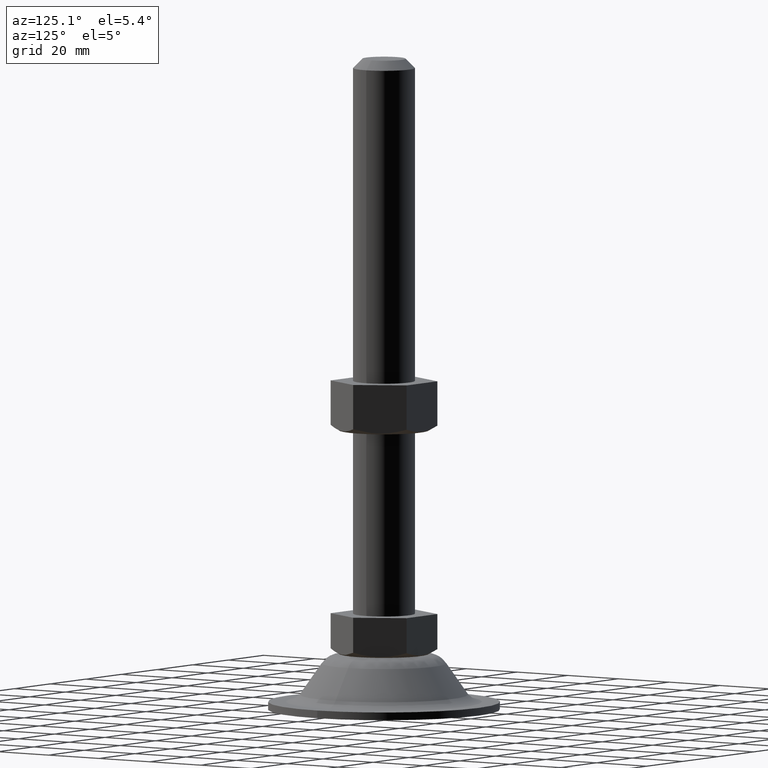
[diagram: clean part render]
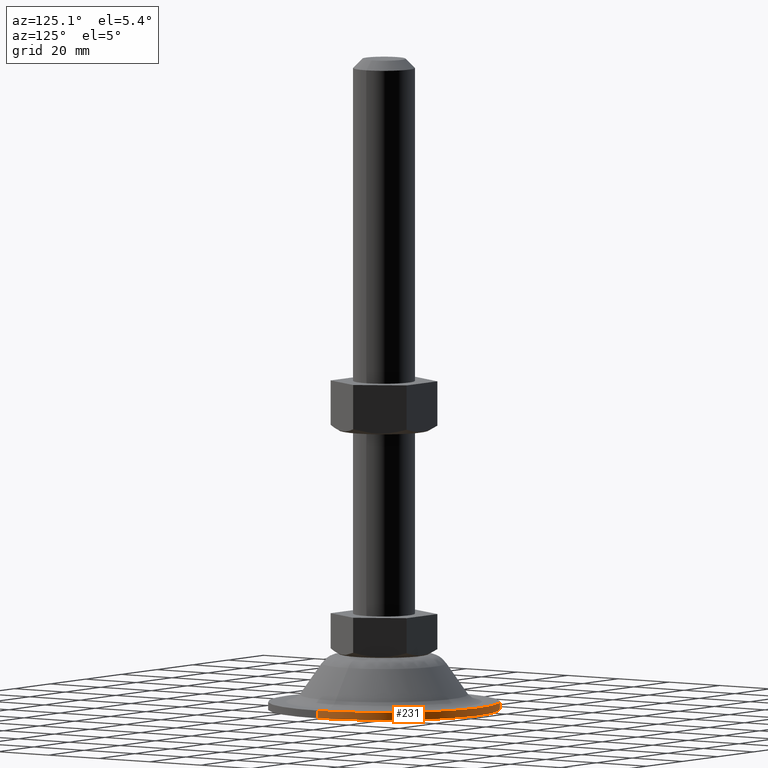
[diagram: same view with one face highlighted and labeled with its STEP entity id]
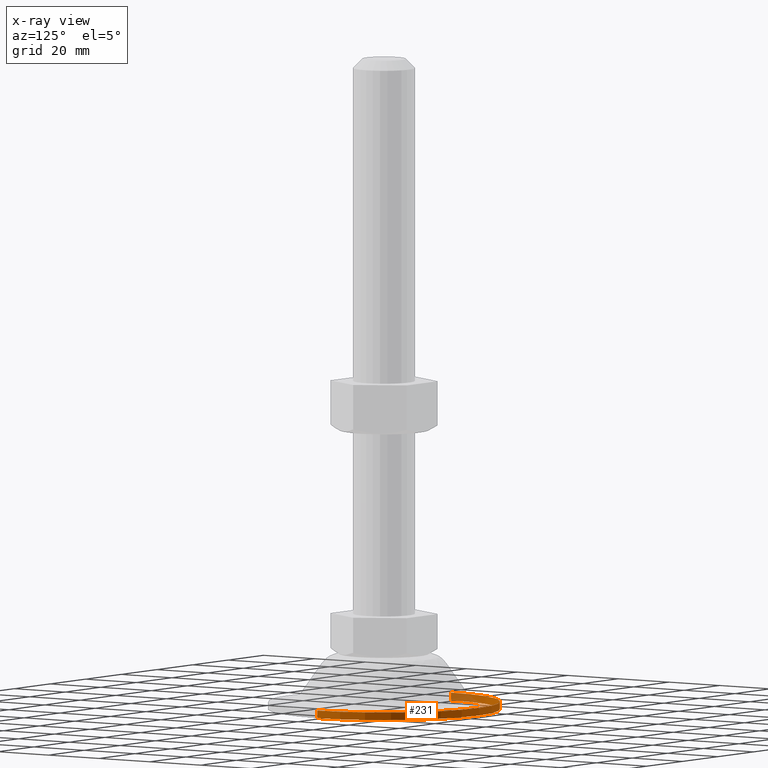
[diagram: x-ray of the same camera — body ghosted, the highlighted face saturated]
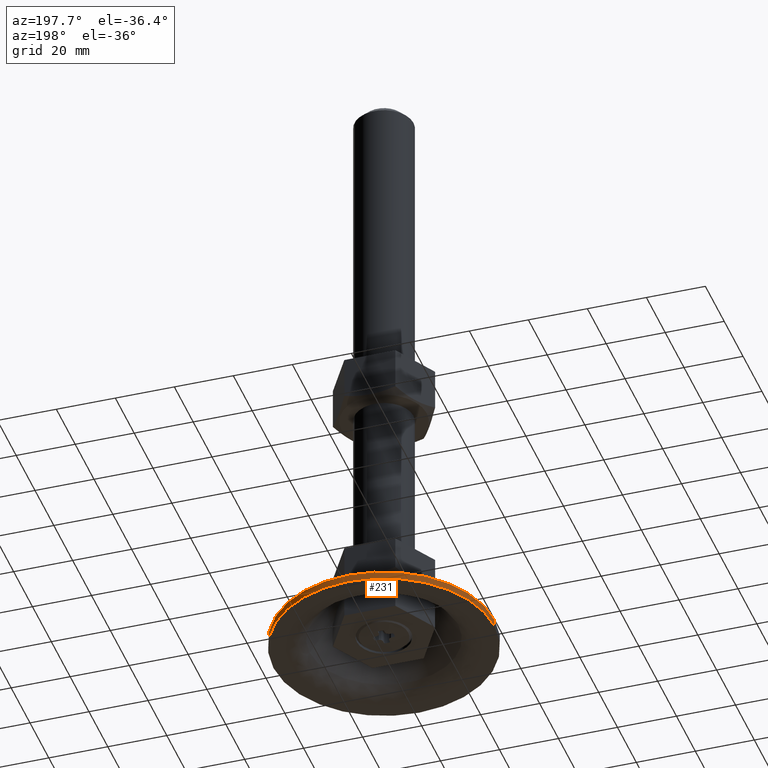
[diagram: same view with one face highlighted and labeled with its STEP entity id]
A machine part, auxiliary view. The second image highlights one B-rep face of the part: STEP entity #231.
The next image is the same camera in x-ray: the body ghosted, the highlighted face saturated — about 10% of this face is hidden behind the body in this view.
A second angle (auxiliary view) of the same face is appended — the face is thin or edge-on in the first view.
In plain terms, the highlighted cylindrical surface (partial cylindrical patch) has radius 37.5 mm, axis along (0, 0, 1).
Its self-contained STEP definition (entity closure, byte-faithful):
#231=ADVANCED_FACE('',(#1072),#1071,.T.);
#1071=CYLINDRICAL_SURFACE('',#1734,3.75000000000E+01);
#1072=FACE_OUTER_BOUND('',#1735,.T.);
#1731=CARTESIAN_POINT('',(-3.52144979843E-11,0.00000000000E+00,0.00000000000E+00));
#1732=DIRECTION('',(0.00000000000E+00,-0.00000000000E+00,1.00000000000E+00));
#1733=DIRECTION('',(1.00000000000E+00,-0.00000000000E+00,-0.00000000000E+00));
#1734=AXIS2_PLACEMENT_3D('',#1731,#1732,#1733);
#1735=EDGE_LOOP('',(#2211,#2212,#2213,#2214));
#2211=ORIENTED_EDGE('',*,*,#2420,.T.);
#2212=ORIENTED_EDGE('',*,*,#2439,.F.);
#2213=ORIENTED_EDGE('',*,*,#2415,.F.);
#2214=ORIENTED_EDGE('',*,*,#2440,.T.);
#2415=EDGE_CURVE('',#3595,#3596,#3597,.T.);
#2420=EDGE_CURVE('',#3624,#3623,#3631,.T.);
#2439=EDGE_CURVE('',#3596,#3623,#3755,.T.);
#2440=EDGE_CURVE('',#3595,#3624,#3761,.T.);
#3595=VERTEX_POINT('',#4653);
#3596=VERTEX_POINT('',#4654);
#3597=CIRCLE('',#4658,3.75000000000E+01);
#3623=VERTEX_POINT('',#4673);
#3624=VERTEX_POINT('',#4674);
#3631=CIRCLE('',#4682,3.75000000000E+01);
#3755=(BOUNDED_CURVE() B_SPLINE_CURVE(1,(#4753,#4754),.UNSPECIFIED.,.F.,.F.) B_SPLINE_CURVE_WITH_KNOTS((2,2),(8.33333233997E-02,9.16666663280E-01),.UNSPECIFIED.) CURVE() GEOMETRIC_REPRESENTATION_ITEM() RATIONAL_B_SPLINE_CURVE((1.00000000000E+00,1.00000000000E+00)) REPRESENTATION_ITEM('') );
#3761=(BOUNDED_CURVE() B_SPLINE_CURVE(1,(#4755,#4756),.UNSPECIFIED.,.F.,.F.) B_SPLINE_CURVE_WITH_KNOTS((2,2),(8.33333333333E-02,9.16666666667E-01),.UNSPECIFIED.) CURVE() GEOMETRIC_REPRESENTATION_ITEM() RATIONAL_B_SPLINE_CURVE((7.50000000000E-01,7.50000000000E-01)) REPRESENTATION_ITEM('') );
#4653=CARTESIAN_POINT('',(-3.75000000001E+01,0.00000000000E+00,-3.10417424306E+01));
#4654=CARTESIAN_POINT('',(3.75000000000E+01,2.36847578587E-15,-3.10417424306E+01));
#4655=CARTESIAN_POINT('',(-3.52144979843E-11,0.00000000000E+00,-3.10417424306E+01));
#4656=DIRECTION('',(-0.00000000000E+00,0.00000000000E+00,-1.00000000000E+00));
#4657=DIRECTION('',(-1.00000000000E+00,-1.22460635382E-16,0.00000000000E+00));
#4658=AXIS2_PLACEMENT_3D('',#4655,#4656,#4657);
#4673=CARTESIAN_POINT('',(3.75000000000E+01,-5.68434188608E-14,-2.85417424306E+01));
#4674=CARTESIAN_POINT('',(-3.75000000001E+01,0.00000000000E+00,-2.85417424306E+01));
#4679=CARTESIAN_POINT('',(-3.52144979843E-11,0.00000000000E+00,-2.85417424306E+01));
#4680=DIRECTION('',(-0.00000000000E+00,0.00000000000E+00,-1.00000000000E+00));
#4681=DIRECTION('',(-1.00000000000E+00,-1.22460635382E-16,0.00000000000E+00));
#4682=AXIS2_PLACEMENT_3D('',#4679,#4680,#4681);
#4753=CARTESIAN_POINT('',(3.75000000000E+01,0.00000000000E+00,-3.10417424604E+01));
#4754=CARTESIAN_POINT('',(3.75000000000E+01,0.00000000000E+00,-2.85417424407E+01));
#4755=CARTESIAN_POINT('',(-3.75000000001E+01,-4.73695157173E-15,-3.10417424306E+01));
#4756=CARTESIAN_POINT('',(-3.75000000001E+01,-4.73695157173E-15,-2.85417424306E+01));